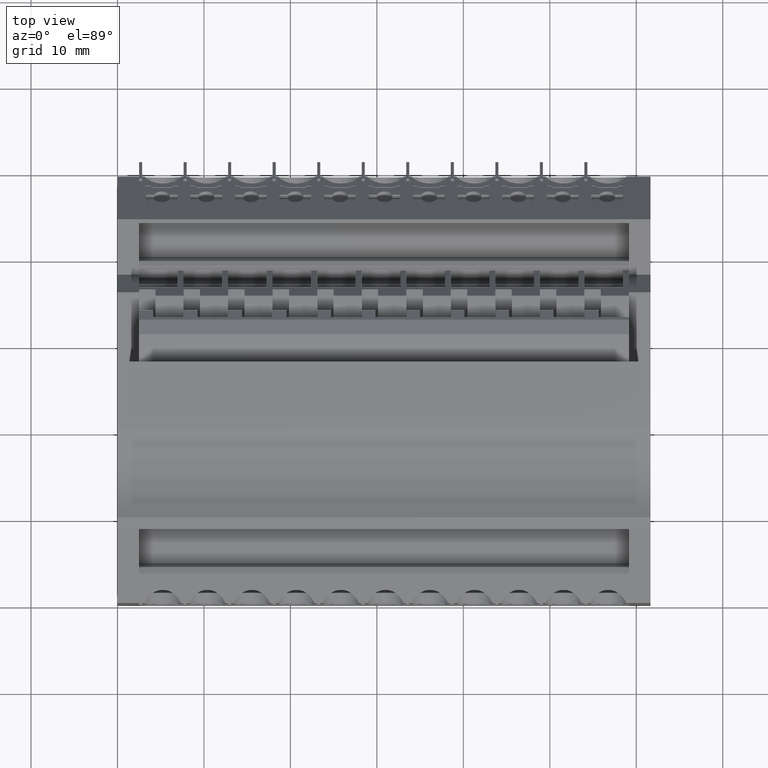
[diagram: clean part render]
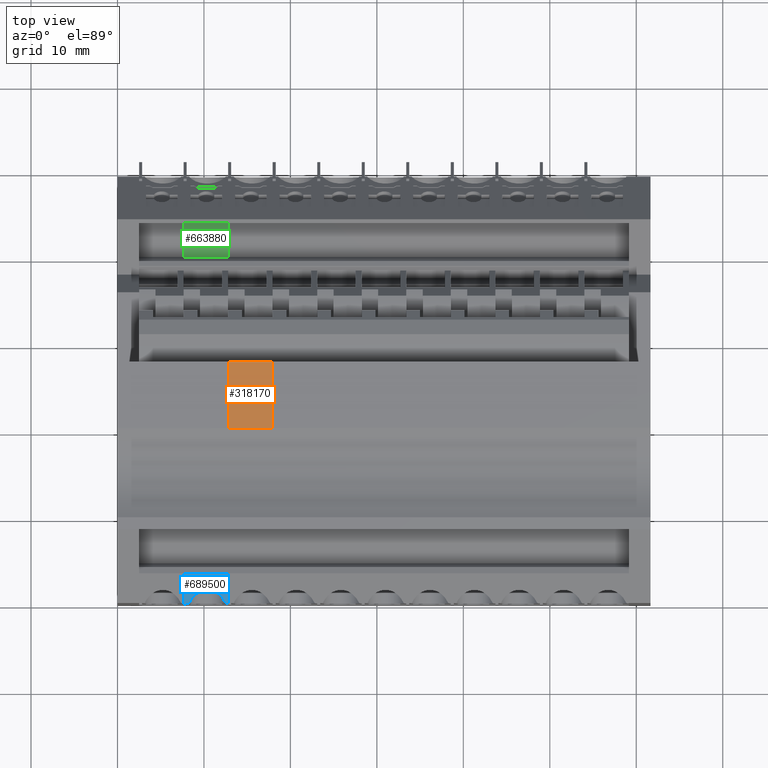
[diagram: same view with three faces highlighted in distinct colors, each labeled with its STEP entity id]
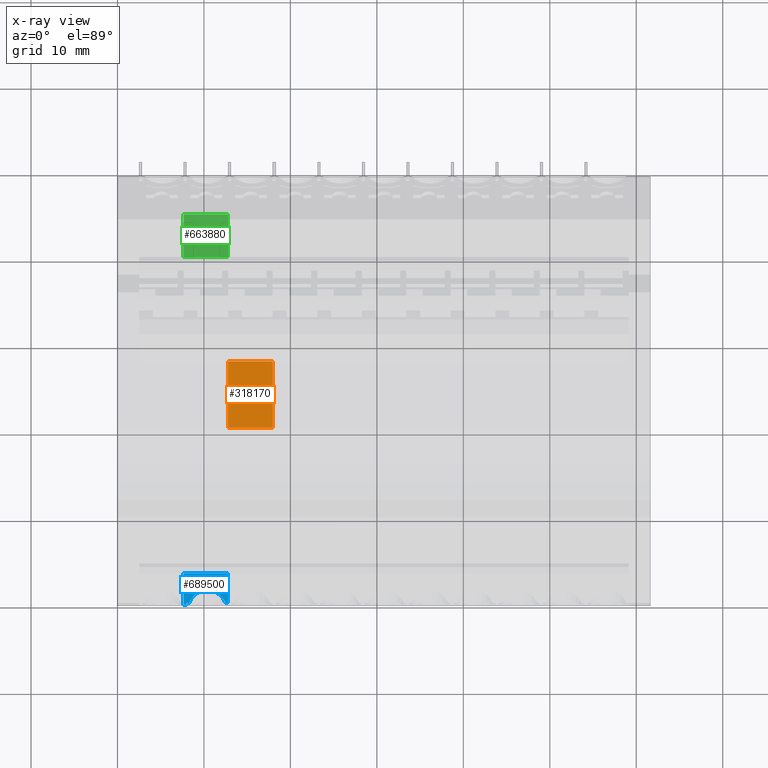
[diagram: x-ray of the same camera — body ghosted, the three highlighted faces saturated]
A machine part, top view with three faces highlighted in distinct colors.
The next image is the same camera in x-ray (body ghosted, the three faces saturated) — at least one of them is partly hidden behind the body in this view.
Their STEP definitions:

[orange] entity #318170 — the highlighted planar face has unit normal (0, -0, 1).
#46780=CARTESIAN_POINT('',(448.253158793919,697.534347612595,
88.7199999827284));
#46790=DIRECTION('',(9.42661032482955E-11,-5.6928153239199E-10,-1.));
#46800=VECTOR('',#46790,1.);
#46810=LINE('',#46780,#46800);
#55220=CARTESIAN_POINT('',(448.253158796239,697.534347615201,
83.5699999826149));
#55230=VERTEX_POINT('',#55220);
#56630=CARTESIAN_POINT('',(454.260324169573,697.534347599169,
68.1199999817189));
#56640=DIRECTION('',(1.20456367097695E-9,1.,-5.69281446053159E-10));
#56650=DIRECTION('',(1.,-1.20456367103121E-9,-9.53018157247533E-11));
#56660=AXIS2_PLACEMENT_3D('',#56630,#56640,#56650);
#56670=PLANE('',#56660);
#56820=CARTESIAN_POINT('',(440.590572543565,697.534347620336,
82.9450001635446));
#56830=DIRECTION('',(3.65710502038586E-10,4.95141851786755E-10,1.));
#56840=VECTOR('',#56830,1.);
#56850=LINE('',#56820,#56840);
#254960=CARTESIAN_POINT('',(448.253158794772,697.534347612269,
78.4199999826149));
#254970=VERTEX_POINT('',#254960);
#255000=CARTESIAN_POINT('',(409.368902575318,697.534347659107,
78.4199999856955));
#255010=DIRECTION('',(1.,-1.2045636710312E-9,-7.92260575924487E-11));
#255020=VECTOR('',#255010,1.);
#255030=LINE('',#255000,#255020);
#255040=CARTESIAN_POINT('',(440.59057254191,697.534347621499,
78.4199999832219));
#255050=VERTEX_POINT('',#255040);
#255060=EDGE_CURVE('',#255050,#254970,#255030,.T.);
#318020=EDGE_CURVE('',#55230,#254970,#46810,.T.);
#318030=ORIENTED_EDGE('',*,*,#318020,.T.);
#318040=CARTESIAN_POINT('',(409.368902574654,697.534347662039,
83.5699999856955));
#318050=DIRECTION('',(1.,-1.2045636710312E-9,-7.92260575924487E-11));
#318060=VECTOR('',#318050,1.);
#318070=LINE('',#318040,#318060);
#318080=CARTESIAN_POINT('',(440.590572545468,697.534347621655,
83.5699999809698));
#318090=VERTEX_POINT('',#318080);
#318100=EDGE_CURVE('',#318090,#55230,#318070,.T.);
#318110=ORIENTED_EDGE('',*,*,#318100,.T.);
#318120=EDGE_CURVE('',#255050,#318090,#56850,.T.);
#318130=ORIENTED_EDGE('',*,*,#318120,.T.);
#318140=ORIENTED_EDGE('',*,*,#255060,.F.);
#318150=EDGE_LOOP('',(#318140,#318130,#318110,#318030));
#318160=FACE_OUTER_BOUND('',#318150,.T.);
#318170=ADVANCED_FACE('',(#318160),#56670,.T.);

[blue] entity #689500 — the highlighted planar face has unit normal (-0, -0.6428, 0.766).
#92860=CARTESIAN_POINT('',(423.8508749517,693.337380410128,
88.71999998123));
#92870=DIRECTION('',(3.57317305807404E-11,5.38411128446248E-10,1.));
#92880=VECTOR('',#92870,1.);
#92890=LINE('',#92860,#92880);
#213580=CARTESIAN_POINT('',(422.138206571203,691.900281005658,
73.2699999865796));
#213590=DIRECTION('',(-0.642787607836916,0.766044444670996,
-3.89478801783717E-10));
#213600=DIRECTION('',(0.766044444670996,0.642787607836916,
-4.25146305308343E-10));
#213610=AXIS2_PLACEMENT_3D('',#213580,#213590,#213600);
#213620=PLANE('',#213610);
#213630=CARTESIAN_POINT('',(423.850874949622,693.337380405204,
78.4199999870049));
#213640=VERTEX_POINT('',#213630);
#214140=CARTESIAN_POINT('',(420.453158784667,690.486358037209,
78.419999988943));
#214150=VERTEX_POINT('',#214140);
#214180=CARTESIAN_POINT('',(418.258461687078,688.644788522908,
78.4199999901948));
#214190=DIRECTION('',(0.766044444670996,0.642787607836916,
-4.36950296813667E-10));
#214200=VECTOR('',#214190,1.);
#214210=LINE('',#214180,#214200);
#214220=EDGE_CURVE('',#214150,#213640,#214210,.T.);
#258020=CARTESIAN_POINT('',(423.850874949798,693.337380403419,
73.2699999870048));
#258030=VERTEX_POINT('',#258020);
#465070=CARTESIAN_POINT('',(418.258461687269,688.64478852045,
73.2699999901947));
#465080=DIRECTION('',(0.766044444670996,0.642787607836916,
-4.36950296813667E-10));
#465090=VECTOR('',#465080,1.);
#465100=LINE('',#465070,#465090);
#465110=CARTESIAN_POINT('',(420.453158782773,690.486358034803,
73.2699999889429));
#465120=VERTEX_POINT('',#465110);
#465130=EDGE_CURVE('',#465120,#258030,#465100,.T.);
#688240=CARTESIAN_POINT('',(420.253158788549,690.318538108885,
73.6199999818797));
#688250=VERTEX_POINT('',#688240);
#688280=CARTESIAN_POINT('',(418.258461690002,688.644788517871,
73.6199999825178));
#688290=DIRECTION('',(-0.76604444476172,-0.642787607728796,
2.45000771014581E-10));
#688300=VECTOR('',#688290,1.);
#688310=LINE('',#688280,#688300);
#688320=CARTESIAN_POINT('',(420.453158784132,690.486358030543,
73.6199999818158));
#688330=VERTEX_POINT('',#688320);
#688340=EDGE_CURVE('',#688330,#688250,#688310,.T.);
#689140=EDGE_CURVE('',#258030,#213640,#92890,.T.);
#689150=ORIENTED_EDGE('',*,*,#689140,.F.);
#689160=ORIENTED_EDGE('',*,*,#214220,.T.);
#689170=CARTESIAN_POINT('',(420.453158784093,690.486358030333,
73.2699999852743));
#689180=DIRECTION('',(-1.11377720218254E-10,-6.01885650121683E-10,-1.));
#689190=VECTOR('',#689180,1.);
#689200=LINE('',#689170,#689190);
#689210=CARTESIAN_POINT('',(420.453158783627,690.486358033255,
78.1254447384421));
#689220=VERTEX_POINT('',#689210);
#689230=EDGE_CURVE('',#214150,#689220,#689200,.T.);
#689240=ORIENTED_EDGE('',*,*,#689230,.F.);
#689250=CARTESIAN_POINT('',(419.080259484202,689.334358741528,
76.0199999807141));
#689260=DIRECTION('',(-0.642787607728796,0.76604444476172,
-3.89479239555093E-10));
#689270=DIRECTION('',(0.76604444476172,0.642787607728796,
-2.55276932474438E-10));
#689280=AXIS2_PLACEMENT_3D('',#689250,#689260,#689270);
#689290=ELLIPSE('',#689280,3.73373718971238,2.40000000000534);
#689300=CARTESIAN_POINT('',(420.453158783858,690.48635803072,
73.9145552217501));
#689310=VERTEX_POINT('',#689300);
#689320=EDGE_CURVE('',#689220,#689310,#689290,.T.);
#689330=ORIENTED_EDGE('',*,*,#689320,.F.);
#689340=EDGE_CURVE('',#689310,#688330,#689200,.T.);
#689350=ORIENTED_EDGE('',*,*,#689340,.F.);
#689360=ORIENTED_EDGE('',*,*,#688340,.F.);
#689370=CARTESIAN_POINT('',(420.253158788581,690.318538108734,
73.2699999853428));
#689380=DIRECTION('',(9.05318254705689E-11,-4.32463425682347E-10,-1.));
#689390=VECTOR('',#689380,1.);
#689400=LINE('',#689370,#689390);
#689410=CARTESIAN_POINT('',(420.253158785858,690.318538111979,
73.2699999890569));
#689420=VERTEX_POINT('',#689410);
#689430=EDGE_CURVE('',#688250,#689420,#689400,.T.);
#689440=ORIENTED_EDGE('',*,*,#689430,.F.);
#689450=EDGE_CURVE('',#689420,#465120,#465100,.T.);
#689460=ORIENTED_EDGE('',*,*,#689450,.F.);
#689470=ORIENTED_EDGE('',*,*,#465130,.F.);
#689480=EDGE_LOOP('',(#689470,#689460,#689440,#689360,#689350,#689330,
#689240,#689160,#689150));
#689490=FACE_OUTER_BOUND('',#689480,.T.);
#689500=ADVANCED_FACE('',(#689490),#213620,.T.);

[green] entity #663880 — the highlighted planar face has unit normal (-0, 0.6428, -0.766).
#26720=CARTESIAN_POINT('',(465.396500997741,690.841400063605,
85.2749975649605));
#26730=DIRECTION('',(1.6669925506053E-10,4.90742847764455E-10,1.));
#26740=VECTOR('',#26730,1.);
#26750=LINE('',#26720,#26740);
#49980=CARTESIAN_POINT('',(465.396500997741,690.841400063605,
85.2749975649605));
#49990=DIRECTION('',(0.64278760909489,-0.76604444361543,
2.68778616175716E-10));
#50000=DIRECTION('',(-0.76604444361543,-0.64278760909489,
4.43142362006165E-10));
#50010=AXIS2_PLACEMENT_3D('',#49980,#49990,#50000);
#50020=PLANE('',#50010);
#50030=CARTESIAN_POINT('',(460.551269891873,686.775768436079,
85.2749975677634));
#50040=DIRECTION('',(1.6669925506053E-10,4.90742847764455E-10,1.));
#50050=VECTOR('',#50040,1.);
#50060=LINE('',#50030,#50050);
#329630=CARTESIAN_POINT('',(460.551269889872,686.775768430188,
73.2699999879381));
#329640=VERTEX_POINT('',#329630);
#332210=CARTESIAN_POINT('',(465.39650099574,690.841400057713,
73.2699999851743));
#332220=VERTEX_POINT('',#332210);
#479140=CARTESIAN_POINT('',(460.551269890731,686.775768432715,
78.4199999879381));
#479150=VERTEX_POINT('',#479140);
#521740=CARTESIAN_POINT('',(465.396500996598,690.841400060241,
78.4199999851744));
#521750=VERTEX_POINT('',#521740);
#534110=CARTESIAN_POINT('',(438.571064189555,668.332185964587,
78.4200000004756));
#534120=DIRECTION('',(-0.766044443615431,-0.642787609094891,
4.36950297750707E-10));
#534130=VECTOR('',#534120,1.);
#534140=LINE('',#534110,#534130);
#534150=EDGE_CURVE('',#521750,#479150,#534140,.T.);
#630290=CARTESIAN_POINT('',(438.571064189305,668.33218596257,
73.2700000004755));
#630300=DIRECTION('',(-0.766044443615431,-0.642787609094891,
4.36950297750707E-10));
#630310=VECTOR('',#630300,1.);
#630320=LINE('',#630290,#630310);
#630330=EDGE_CURVE('',#332220,#329640,#630320,.T.);
#657470=EDGE_CURVE('',#332220,#521750,#26750,.T.);
#663020=EDGE_CURVE('',#329640,#479150,#50060,.T.);
#663820=ORIENTED_EDGE('',*,*,#663020,.T.);
#663830=ORIENTED_EDGE('',*,*,#630330,.T.);
#663840=ORIENTED_EDGE('',*,*,#657470,.F.);
#663850=ORIENTED_EDGE('',*,*,#534150,.F.);
#663860=EDGE_LOOP('',(#663850,#663840,#663830,#663820));
#663870=FACE_OUTER_BOUND('',#663860,.T.);
#663880=ADVANCED_FACE('',(#663870),#50020,.F.);